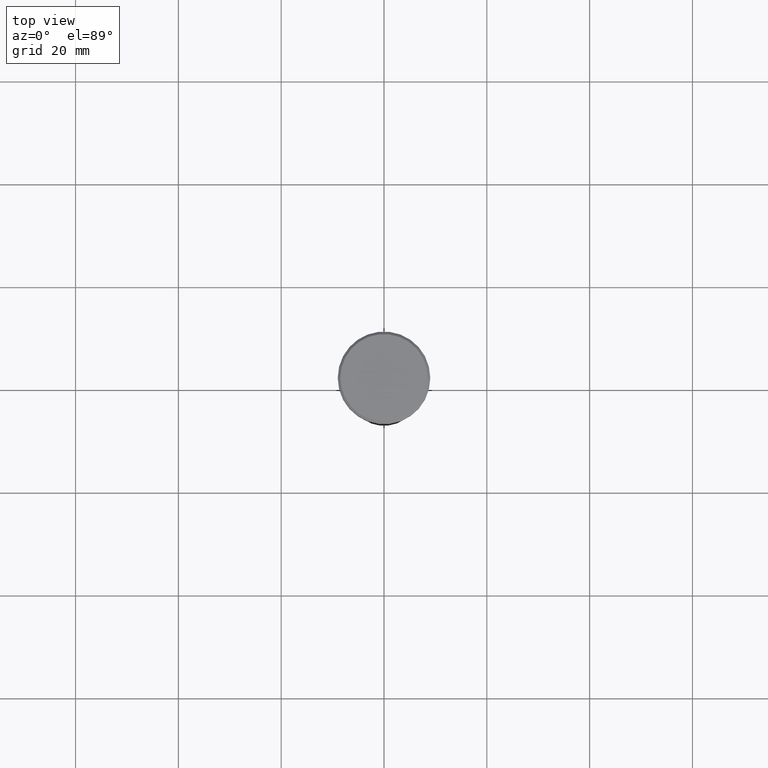
[diagram: clean part render]
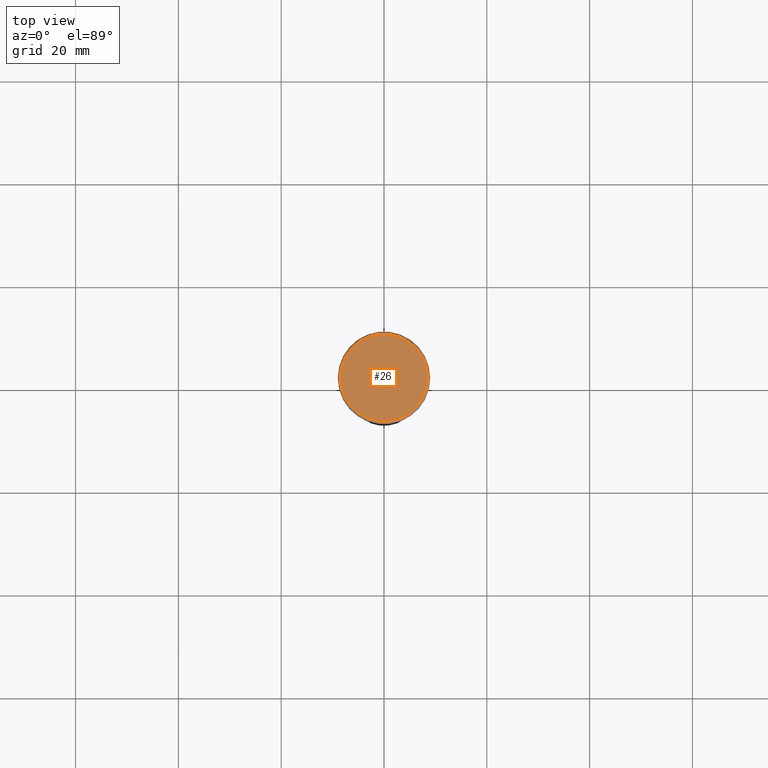
[diagram: same view with one face highlighted and labeled with its STEP entity id]
A machine part, top view. The second image highlights one B-rep face of the part: STEP entity #26.
In plain terms, the highlighted planar face has unit normal (0, -0, 1).
Its self-contained STEP definition (entity closure, byte-faithful):
#26 = ADVANCED_FACE ( 'NONE', ( #611 ), #930, .T. ) ;
#36 = ORIENTED_EDGE ( 'NONE', *, *, #664, .T. ) ;
#196 = DIRECTION ( 'NONE',  ( 0.000000000000000000, -0.000000000000000000, 1.000000000000000000 ) ) ;
#237 = DIRECTION ( 'NONE',  ( -0.000000000000000000, -0.000000000000000000, 1.000000000000000000 ) ) ;
#247 = EDGE_CURVE ( 'NONE', #798, #809, #393, .T. ) ;
#393 = CIRCLE ( 'NONE', #548, 8.500000000000003553 ) ;
#405 = DIRECTION ( 'NONE',  ( 1.000000000000000000, 0.000000000000000000, 0.000000000000000000 ) ) ;
#502 = CARTESIAN_POINT ( 'NONE',  ( 0.000000000000000000, 0.000000000000000000, 0.000000000000000000 ) ) ;
#528 = DIRECTION ( 'NONE',  ( 1.000000000000000000, 0.000000000000000000, 0.000000000000000000 ) ) ;
#548 = AXIS2_PLACEMENT_3D ( 'NONE', #502, #810, #978 ) ;
#559 = EDGE_LOOP ( 'NONE', ( #36, #788 ) ) ;
#587 = CARTESIAN_POINT ( 'NONE',  ( -8.500000000000003553, 0.000000000000000000, 0.000000000000000000 ) ) ;
#611 = FACE_OUTER_BOUND ( 'NONE', #559, .T. ) ;
#664 = EDGE_CURVE ( 'NONE', #809, #798, #670, .T. ) ;
#670 = CIRCLE ( 'NONE', #906, 8.500000000000003553 ) ;
#788 = ORIENTED_EDGE ( 'NONE', *, *, #247, .T. ) ;
#798 = VERTEX_POINT ( 'NONE', #910 ) ;
#809 = VERTEX_POINT ( 'NONE', #587 ) ;
#810 = DIRECTION ( 'NONE',  ( -0.000000000000000000, -0.000000000000000000, 1.000000000000000000 ) ) ;
#906 = AXIS2_PLACEMENT_3D ( 'NONE', #1051, #237, #405 ) ;
#910 = CARTESIAN_POINT ( 'NONE',  ( 8.500000000000003553, 1.071565949253934321E-15, 0.000000000000000000 ) ) ;
#930 = PLANE ( 'NONE',  #1057 ) ;
#936 = CARTESIAN_POINT ( 'NONE',  ( 0.000000000000000000, 0.000000000000000000, 0.000000000000000000 ) ) ;
#978 = DIRECTION ( 'NONE',  ( 1.000000000000000000, 0.000000000000000000, 0.000000000000000000 ) ) ;
#1051 = CARTESIAN_POINT ( 'NONE',  ( 0.000000000000000000, 0.000000000000000000, 0.000000000000000000 ) ) ;
#1057 = AXIS2_PLACEMENT_3D ( 'NONE', #936, #196, #528 ) ;